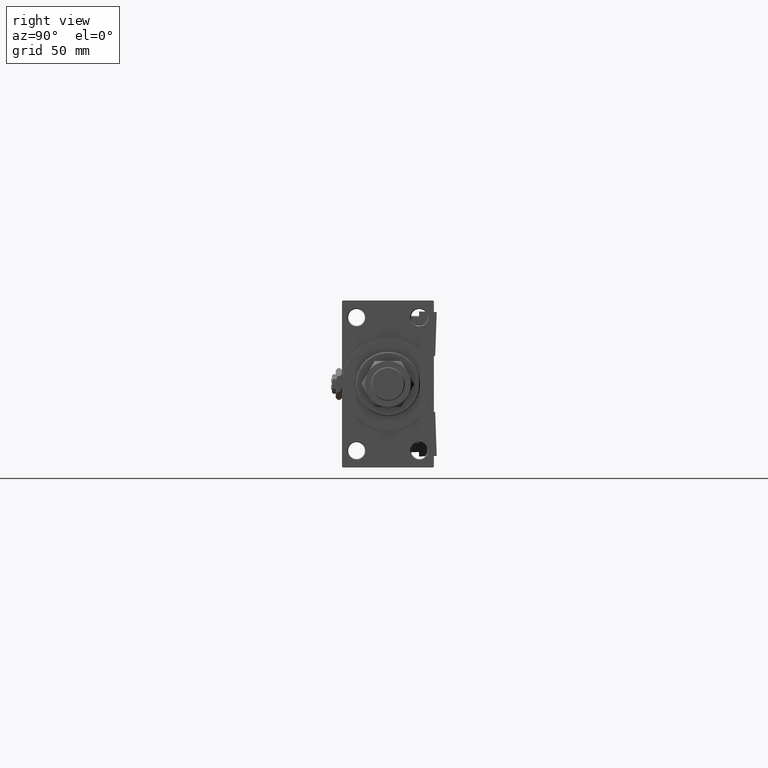
[diagram: clean part render]
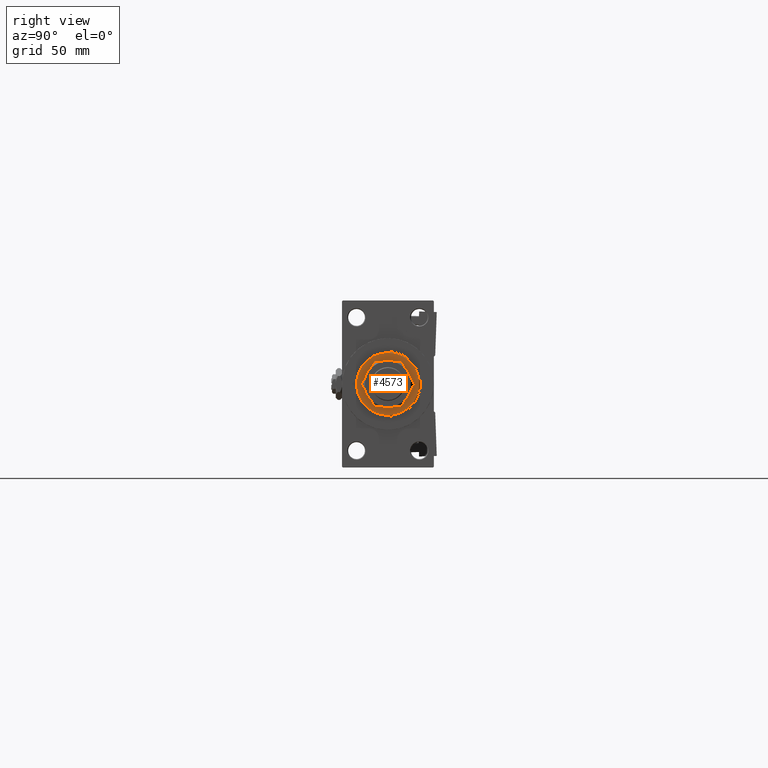
[diagram: same view with one face highlighted and labeled with its STEP entity id]
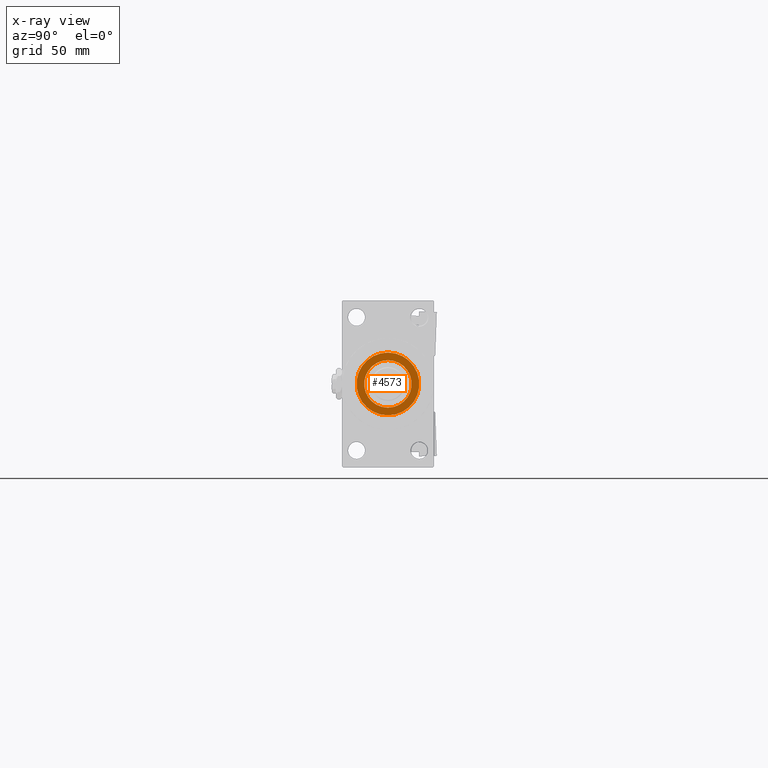
[diagram: x-ray of the same camera — body ghosted, the highlighted face saturated]
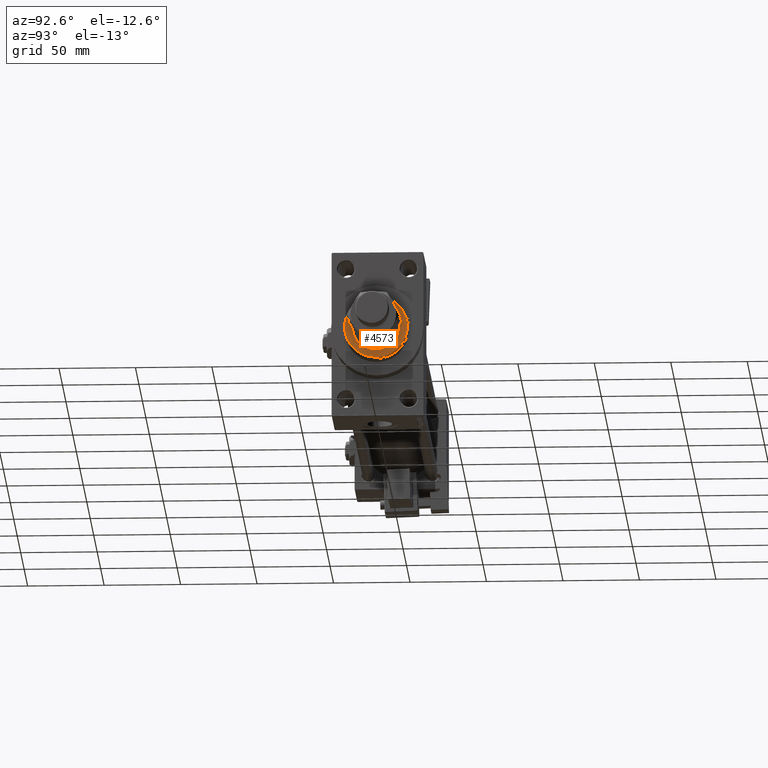
[diagram: same view with one face highlighted and labeled with its STEP entity id]
A machine part, right view. The second image highlights one B-rep face of the part: STEP entity #4573.
The next image is the same camera in x-ray: the body ghosted, the highlighted face saturated — about 0% of this face is hidden behind the body in this view.
A second angle (auxiliary view) of the same face is appended — the face is thin or edge-on in the first view.
In plain terms, the highlighted planar face has unit normal (1, -0, -0).
Its self-contained STEP definition (entity closure, byte-faithful):
#1511 = PLANE ( 'NONE',  #16527 ) ;
#2352 = VERTEX_POINT ( 'NONE', #14750 ) ;
#4573 = ADVANCED_FACE ( 'NONE', ( #51276, #38108 ), #1511, .T. ) ;
#6150 = CARTESIAN_POINT ( 'NONE',  ( 0.000000000000000000, 0.000000000000000000, 55.26000000000000512 ) ) ;
#6535 = EDGE_LOOP ( 'NONE', ( #36917, #23894 ) ) ;
#7618 = EDGE_CURVE ( 'NONE', #31684, #50746, #40580, .T. ) ;
#8944 = DIRECTION ( 'NONE',  ( 0.000000000000000000, 0.000000000000000000, 1.000000000000000000 ) ) ;
#9396 = ORIENTED_EDGE ( 'NONE', *, *, #7618, .F. ) ;
#9588 = DIRECTION ( 'NONE',  ( 1.000000000000000000, 0.000000000000000000, -0.000000000000000000 ) ) ;
#10439 = DIRECTION ( 'NONE',  ( 1.000000000000000000, 0.000000000000000000, 0.000000000000000000 ) ) ;
#13614 = DIRECTION ( 'NONE',  ( 0.000000000000000000, 0.000000000000000000, 1.000000000000000000 ) ) ;
#13696 = CIRCLE ( 'NONE', #51494, 15.50000000000000000 ) ;
#14750 = CARTESIAN_POINT ( 'NONE',  ( -20.50000000000000355, 0.000000000000000000, 55.26000000000000512 ) ) ;
#15938 = DIRECTION ( 'NONE',  ( 1.000000000000000000, 0.000000000000000000, 0.000000000000000000 ) ) ;
#16527 = AXIS2_PLACEMENT_3D ( 'NONE', #17652, #13614, #9588 ) ;
#16891 = EDGE_CURVE ( 'NONE', #50746, #31684, #13696, .T. ) ;
#17031 = AXIS2_PLACEMENT_3D ( 'NONE', #19693, #52502, #15938 ) ;
#17652 = CARTESIAN_POINT ( 'NONE',  ( 0.000000000000000000, 0.000000000000000000, 55.26000000000000512 ) ) ;
#18735 = CARTESIAN_POINT ( 'NONE',  ( 20.50000000000000355, 2.541142108230758269E-15, 55.26000000000000512 ) ) ;
#19067 = ORIENTED_EDGE ( 'NONE', *, *, #16891, .F. ) ;
#19693 = CARTESIAN_POINT ( 'NONE',  ( 0.000000000000000000, 0.000000000000000000, 55.26000000000000512 ) ) ;
#21366 = AXIS2_PLACEMENT_3D ( 'NONE', #31615, #31082, #26514 ) ;
#23894 = ORIENTED_EDGE ( 'NONE', *, *, #51695, .T. ) ;
#26514 = DIRECTION ( 'NONE',  ( 1.000000000000000000, 0.000000000000000000, 0.000000000000000000 ) ) ;
#27118 = DIRECTION ( 'NONE',  ( 0.000000000000000000, 0.000000000000000000, 1.000000000000000000 ) ) ;
#31082 = DIRECTION ( 'NONE',  ( 0.000000000000000000, 0.000000000000000000, 1.000000000000000000 ) ) ;
#31615 = CARTESIAN_POINT ( 'NONE',  ( 0.000000000000000000, 0.000000000000000000, 55.26000000000000512 ) ) ;
#31684 = VERTEX_POINT ( 'NONE', #43741 ) ;
#33169 = CARTESIAN_POINT ( 'NONE',  ( 0.000000000000000000, 0.000000000000000000, 55.26000000000000512 ) ) ;
#33433 = CIRCLE ( 'NONE', #21366, 20.50000000000000355 ) ;
#36917 = ORIENTED_EDGE ( 'NONE', *, *, #49686, .T. ) ;
#38108 = FACE_OUTER_BOUND ( 'NONE', #6535, .T. ) ;
#38895 = CARTESIAN_POINT ( 'NONE',  ( -15.50000000000000000, 1.898202538678397557E-15, 55.26000000000000512 ) ) ;
#40580 = CIRCLE ( 'NONE', #46575, 15.50000000000000000 ) ;
#41005 = EDGE_LOOP ( 'NONE', ( #9396, #19067 ) ) ;
#41870 = VERTEX_POINT ( 'NONE', #18735 ) ;
#43741 = CARTESIAN_POINT ( 'NONE',  ( 15.50000000000000000, 0.000000000000000000, 55.26000000000000512 ) ) ;
#46575 = AXIS2_PLACEMENT_3D ( 'NONE', #6150, #27118, #10439 ) ;
#47959 = CIRCLE ( 'NONE', #17031, 20.50000000000000355 ) ;
#49686 = EDGE_CURVE ( 'NONE', #2352, #41870, #47959, .T. ) ;
#50355 = DIRECTION ( 'NONE',  ( 1.000000000000000000, 0.000000000000000000, 0.000000000000000000 ) ) ;
#50746 = VERTEX_POINT ( 'NONE', #38895 ) ;
#51276 = FACE_BOUND ( 'NONE', #41005, .T. ) ;
#51494 = AXIS2_PLACEMENT_3D ( 'NONE', #33169, #8944, #50355 ) ;
#51695 = EDGE_CURVE ( 'NONE', #41870, #2352, #33433, .T. ) ;
#52502 = DIRECTION ( 'NONE',  ( 0.000000000000000000, 0.000000000000000000, 1.000000000000000000 ) ) ;